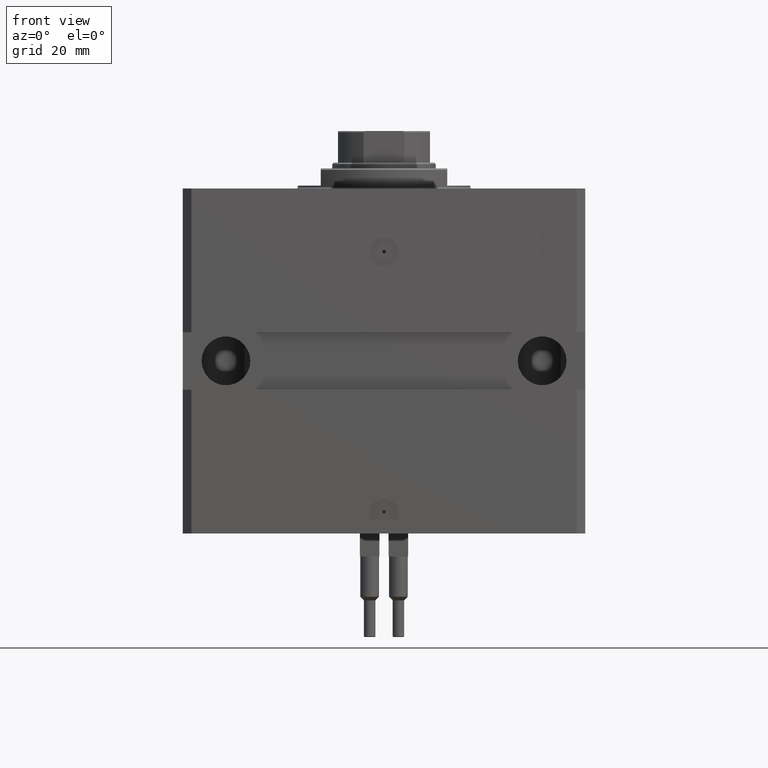
[diagram: clean part render]
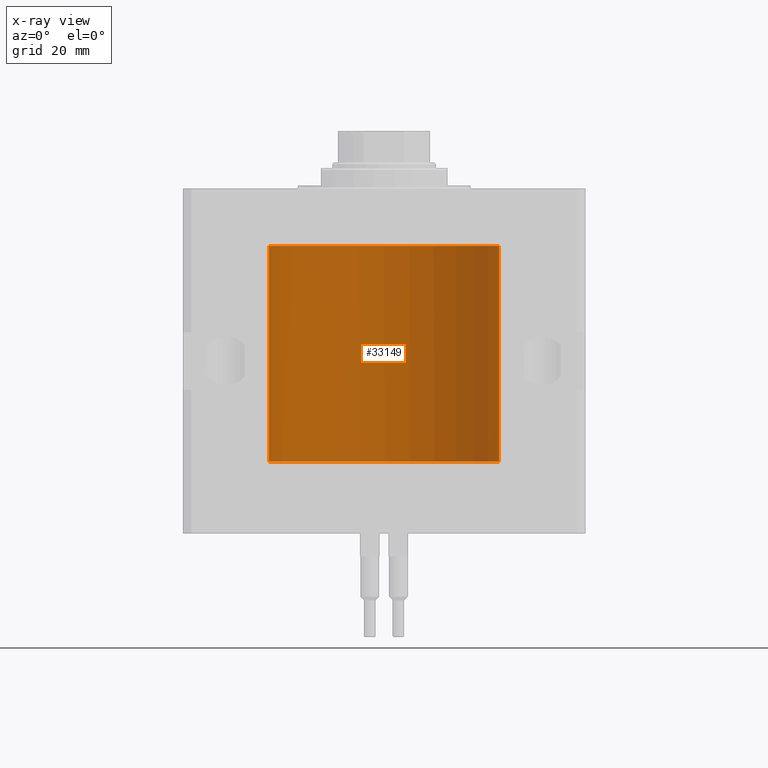
[diagram: x-ray — body ghosted, one internal face saturated and labeled with its STEP entity id]
A machine part, front view, then the same camera in x-ray: the body is ghosted and one INTERNAL B-rep face — a face not visible from any outside direction — is saturated and labeled: STEP entity #33149.
In plain terms, the highlighted cylindrical surface (partial cylindrical patch) has radius 40 mm, axis along (0, 0, 1).
Its self-contained STEP definition (entity closure, byte-faithful):
#194 = VECTOR ( 'NONE', #9154, 1000.000000000000000 ) ;
#544 = B_SPLINE_CURVE_WITH_KNOTS ( 'NONE', 3,
 ( #22181, #22669, #33716, #10918, #26183, #3629 ),
 .UNSPECIFIED., .F., .F.,
 ( 4, 2, 4 ),
 ( 0.0009772540344090913447, 0.001465458787294959039, 0.001953663540180826733 ),
 .UNSPECIFIED. ) ;
#1837 = DIRECTION ( 'NONE',  ( -0.000000000000000000, -0.000000000000000000, 1.000000000000000000 ) ) ;
#3629 = CARTESIAN_POINT ( 'NONE',  ( -39.99511688944039633, 0.6250000000000124345, -95.00000000000000000 ) ) ;
#4524 = CARTESIAN_POINT ( 'NONE',  ( -39.99884667815961592, 0.3253863549934230548, -35.55855380835959778 ) ) ;
#4630 = CARTESIAN_POINT ( 'NONE',  ( 40.00000000000000000, 0.000000000000000000, -95.00000000000000000 ) ) ;
#4863 = CARTESIAN_POINT ( 'NONE',  ( 0.000000000000000000, 0.000000000000000000, -95.00000000000000000 ) ) ;
#7052 = ORIENTED_EDGE ( 'NONE', *, *, #48123, .T. ) ;
#8292 = ORIENTED_EDGE ( 'NONE', *, *, #34485, .T. ) ;
#8296 = CARTESIAN_POINT ( 'NONE',  ( -39.99883108112248919, 0.3150272514608761787, -34.45401719637956717 ) ) ;
#9154 = DIRECTION ( 'NONE',  ( -0.000000000000000000, -0.000000000000000000, 1.000000000000000000 ) ) ;
#9809 = EDGE_CURVE ( 'NONE', #14689, #33487, #14270, .T. ) ;
#10918 = CARTESIAN_POINT ( 'NONE',  ( -39.99627192929612107, 0.5584288736112177354, -94.67445463238748005 ) ) ;
#11800 = CARTESIAN_POINT ( 'NONE',  ( -39.99999999999999289, 0.1631654129523948116, -35.62499999999986500 ) ) ;
#12049 = CARTESIAN_POINT ( 'NONE',  ( -39.99628330279644928, 0.5573335244821722156, -34.67349122557948249 ) ) ;
#12337 = VECTOR ( 'NONE', #14721, 1000.000000000000000 ) ;
#13006 = CARTESIAN_POINT ( 'NONE',  ( 0.000000000000000000, 0.000000000000000000, -20.00000000000000355 ) ) ;
#13018 = EDGE_CURVE ( 'NONE', #14689, #39275, #21301, .T. ) ;
#14003 = DIRECTION ( 'NONE',  ( 0.000000000000000000, 0.000000000000000000, 1.000000000000000000 ) ) ;
#14270 = CIRCLE ( 'NONE', #21492, 40.00000000000000000 ) ;
#14689 = VERTEX_POINT ( 'NONE', #4630 ) ;
#14721 = DIRECTION ( 'NONE',  ( -0.000000000000000000, -0.000000000000000000, 1.000000000000000000 ) ) ;
#14819 = ORIENTED_EDGE ( 'NONE', *, *, #49266, .T. ) ;
#14896 = VERTEX_POINT ( 'NONE', #33193 ) ;
#15561 = CARTESIAN_POINT ( 'NONE',  ( -39.99511779353280616, 0.6249421451454513221, -34.83671655111833587 ) ) ;
#16115 = DIRECTION ( 'NONE',  ( 1.000000000000000000, 0.000000000000000000, 0.000000000000000000 ) ) ;
#16870 = VERTEX_POINT ( 'NONE', #25189 ) ;
#17300 = DIRECTION ( 'NONE',  ( -0.000000000000000000, -0.000000000000000000, 1.000000000000000000 ) ) ;
#17492 = CARTESIAN_POINT ( 'NONE',  ( -40.00000000000000000, 4.898587196589413026E-15, -95.00000000000000000 ) ) ;
#17895 = LINE ( 'NONE', #32452, #194 ) ;
#18589 = VERTEX_POINT ( 'NONE', #27618 ) ;
#18882 = DIRECTION ( 'NONE',  ( 0.000000000000000000, 0.000000000000000000, 1.000000000000000000 ) ) ;
#19271 = VERTEX_POINT ( 'NONE', #40714 ) ;
#20641 = DIRECTION ( 'NONE',  ( 1.000000000000000000, 0.000000000000000000, 0.000000000000000000 ) ) ;
#20753 = AXIS2_PLACEMENT_3D ( 'NONE', #4863, #1837, #20641 ) ;
#21301 = LINE ( 'NONE', #28834, #43267 ) ;
#21492 = AXIS2_PLACEMENT_3D ( 'NONE', #30414, #18882, #16115 ) ;
#22181 = CARTESIAN_POINT ( 'NONE',  ( -40.00000000000012790, 9.803334896741571174E-13, -94.37499999999168665 ) ) ;
#22577 = EDGE_CURVE ( 'NONE', #16870, #14896, #17895, .T. ) ;
#22669 = CARTESIAN_POINT ( 'NONE',  ( -39.99999999999998579, 0.1629608811977192317, -94.37500000000035527 ) ) ;
#25189 = CARTESIAN_POINT ( 'NONE',  ( -40.00000000000012790, 9.803334896741571174E-13, -94.37499999999168665 ) ) ;
#26183 = CARTESIAN_POINT ( 'NONE',  ( -39.99511688944039633, 0.6250000000000127676, -94.83492185971167032 ) ) ;
#26429 = FACE_OUTER_BOUND ( 'NONE', #35024, .T. ) ;
#27618 = CARTESIAN_POINT ( 'NONE',  ( -40.00000000000000000, 1.067655236296513633E-14, -34.37500000000000000 ) ) ;
#28420 = ORIENTED_EDGE ( 'NONE', *, *, #48308, .F. ) ;
#28834 = CARTESIAN_POINT ( 'NONE',  ( 40.00000000000000000, 0.000000000000000000, -95.00000000000000000 ) ) ;
#30414 = CARTESIAN_POINT ( 'NONE',  ( 0.000000000000000000, 0.000000000000000000, -95.00000000000000000 ) ) ;
#30642 = AXIS2_PLACEMENT_3D ( 'NONE', #13006, #14003, #40081 ) ;
#30849 = CARTESIAN_POINT ( 'NONE',  ( -40.00000000000000000, 1.067655236296513633E-14, -34.37500000000000000 ) ) ;
#31339 = CARTESIAN_POINT ( 'NONE',  ( -39.99626798708276709, 0.5587118831704992461, -35.32511485424845432 ) ) ;
#31431 = CYLINDRICAL_SURFACE ( 'NONE', #20753, 40.00000000000000000 ) ;
#32263 = CIRCLE ( 'NONE', #30642, 40.00000000000000000 ) ;
#32452 = CARTESIAN_POINT ( 'NONE',  ( -40.00000000000000000, 4.898587196589413026E-15, -95.00000000000000000 ) ) ;
#33149 = ADVANCED_FACE ( 'NONE', ( #26429 ), #31431, .F. ) ;
#33193 = CARTESIAN_POINT ( 'NONE',  ( -40.00000000000004974, 3.462873814982701370E-13, -35.62500000000321165 ) ) ;
#33487 = VERTEX_POINT ( 'NONE', #35641 ) ;
#33716 = CARTESIAN_POINT ( 'NONE',  ( -39.99884891268878562, 0.3251103027878634033, -94.44131772510861822 ) ) ;
#34358 = ORIENTED_EDGE ( 'NONE', *, *, #13018, .T. ) ;
#34485 = EDGE_CURVE ( 'NONE', #16870, #33487, #544, .T. ) ;
#35024 = EDGE_LOOP ( 'NONE', ( #48833, #8292, #49375, #34358, #14819, #28420, #7052 ) ) ;
#35106 = CARTESIAN_POINT ( 'NONE',  ( -39.99511598657579725, 0.6250577762831023287, -35.16284024614854076 ) ) ;
#35641 = CARTESIAN_POINT ( 'NONE',  ( -39.99511688944039633, 0.6250000000000124345, -95.00000000000000000 ) ) ;
#36804 = LINE ( 'NONE', #17492, #12337 ) ;
#38138 = CARTESIAN_POINT ( 'NONE',  ( -39.99819482034362039, 0.3843641341271077372, -34.50046008996472580 ) ) ;
#38376 = CARTESIAN_POINT ( 'NONE',  ( -40.00000000000004974, 3.462873814982701370E-13, -35.62500000000321165 ) ) ;
#39275 = VERTEX_POINT ( 'NONE', #43705 ) ;
#40081 = DIRECTION ( 'NONE',  ( 1.000000000000000000, 0.000000000000000000, 0.000000000000000000 ) ) ;
#40714 = CARTESIAN_POINT ( 'NONE',  ( -40.00000000000000000, 4.898587196589413026E-15, -20.00000000000000355 ) ) ;
#41586 = B_SPLINE_CURVE_WITH_KNOTS ( 'NONE', 3,
 ( #30849, #42385, #46143, #8296, #38138, #12049, #15561, #35106, #31339, #4524, #11800, #38376 ),
 .UNSPECIFIED., .F., .F.,
 ( 4, 2, 2, 2, 2, 4 ),
 ( 1.036137471307501474E-18, 0.0002442581846113557891, 0.0004885163692227106023, 0.0009770327384454201205, 0.001465549107668129639, 0.001954065476890838940 ),
 .UNSPECIFIED. ) ;
#42385 = CARTESIAN_POINT ( 'NONE',  ( -40.00000000000000000, 0.08259175989844856625, -34.37500000000000711 ) ) ;
#43267 = VECTOR ( 'NONE', #17300, 1000.000000000000000 ) ;
#43705 = CARTESIAN_POINT ( 'NONE',  ( 40.00000000000000000, 0.000000000000000000, -20.00000000000000355 ) ) ;
#46143 = CARTESIAN_POINT ( 'NONE',  ( -39.99973691478699322, 0.1636360998065314876, -34.39126145361714748 ) ) ;
#48123 = EDGE_CURVE ( 'NONE', #18589, #14896, #41586, .T. ) ;
#48308 = EDGE_CURVE ( 'NONE', #18589, #19271, #36804, .T. ) ;
#48833 = ORIENTED_EDGE ( 'NONE', *, *, #22577, .F. ) ;
#49266 = EDGE_CURVE ( 'NONE', #39275, #19271, #32263, .T. ) ;
#49375 = ORIENTED_EDGE ( 'NONE', *, *, #9809, .F. ) ;